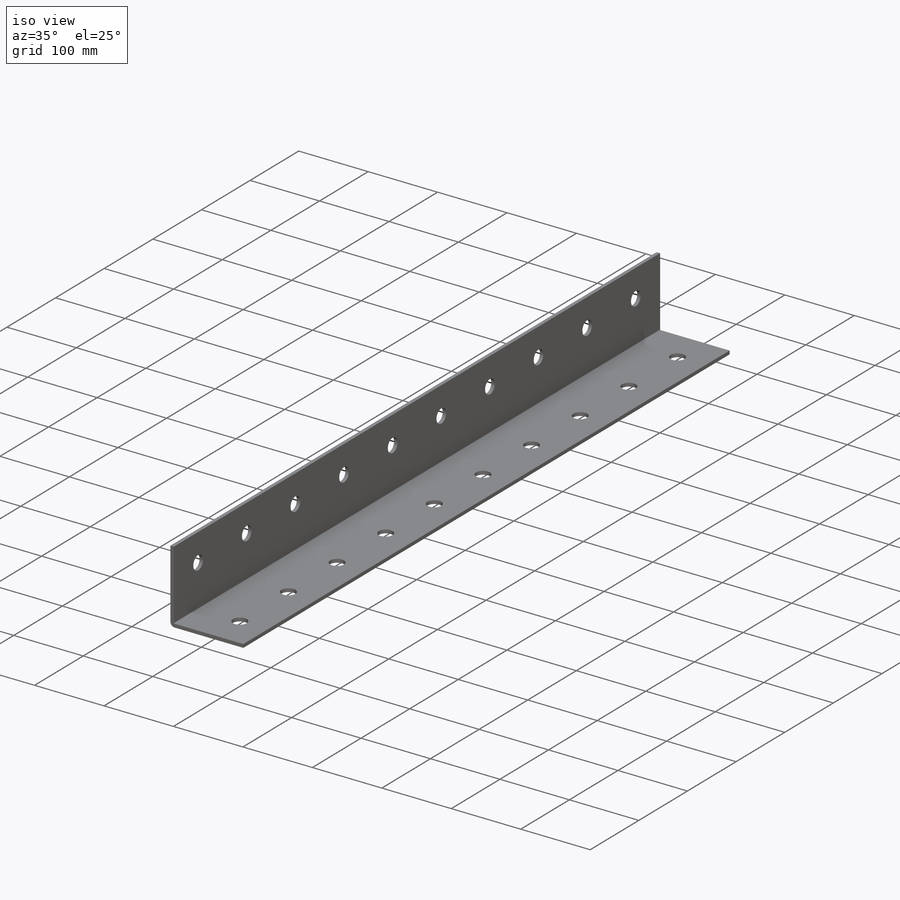
[diagram: iso view]
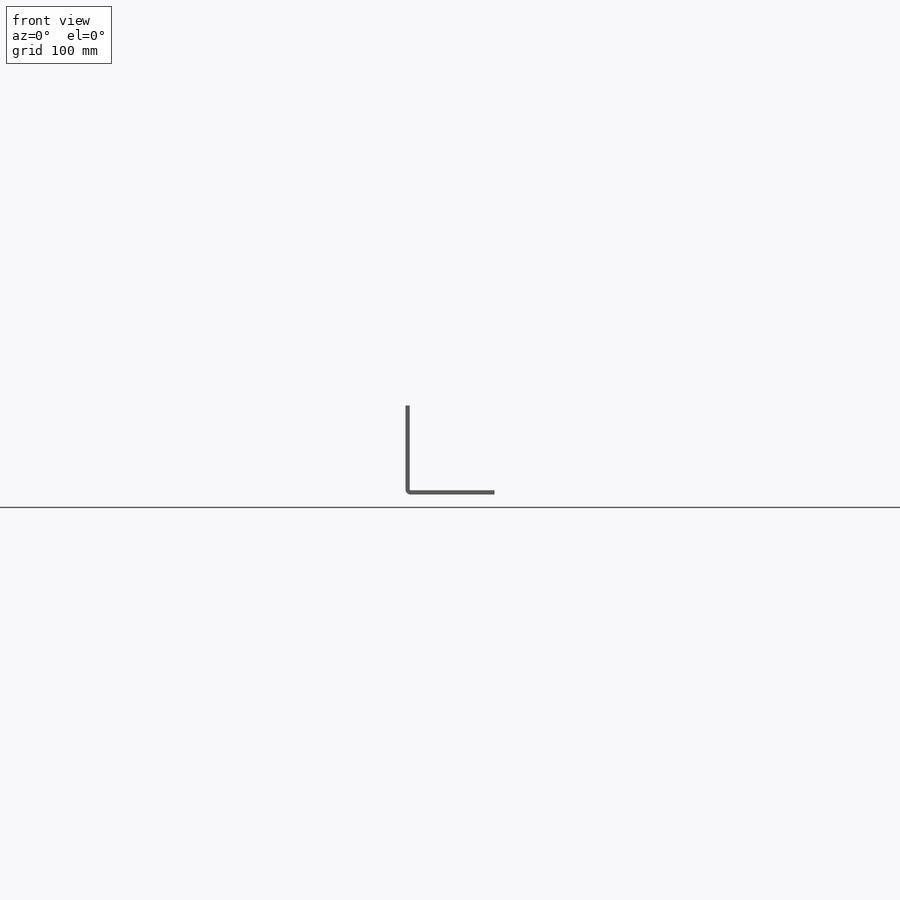
[diagram: front view]
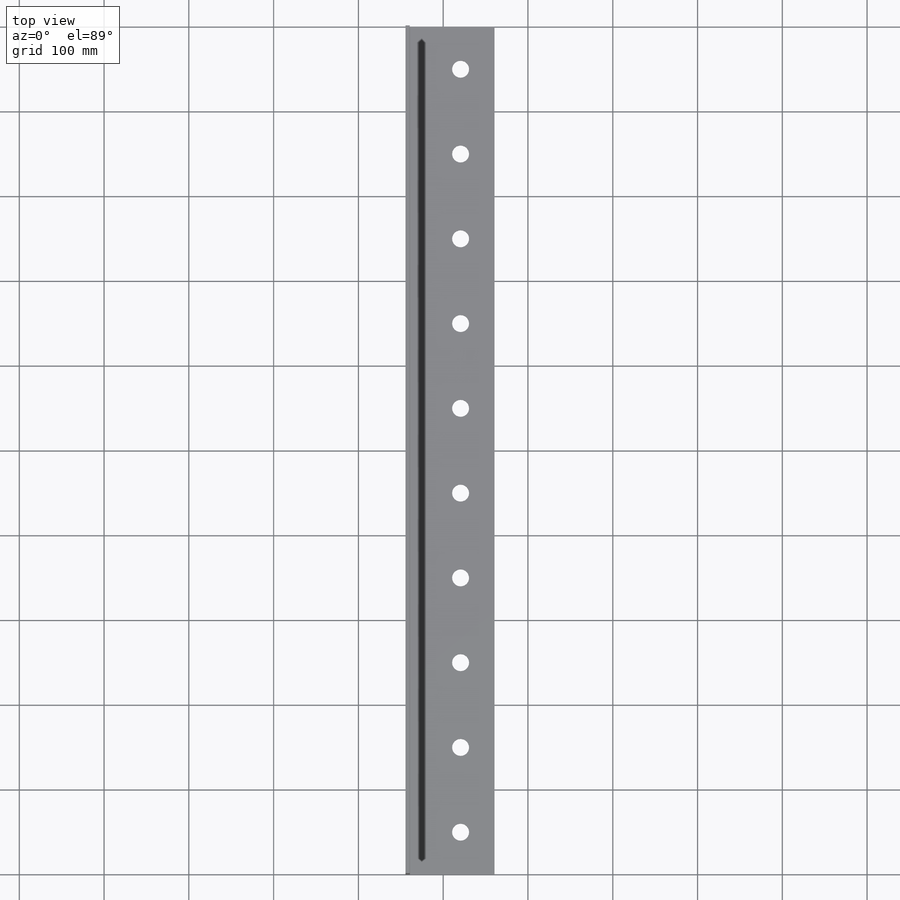
[diagram: top view]
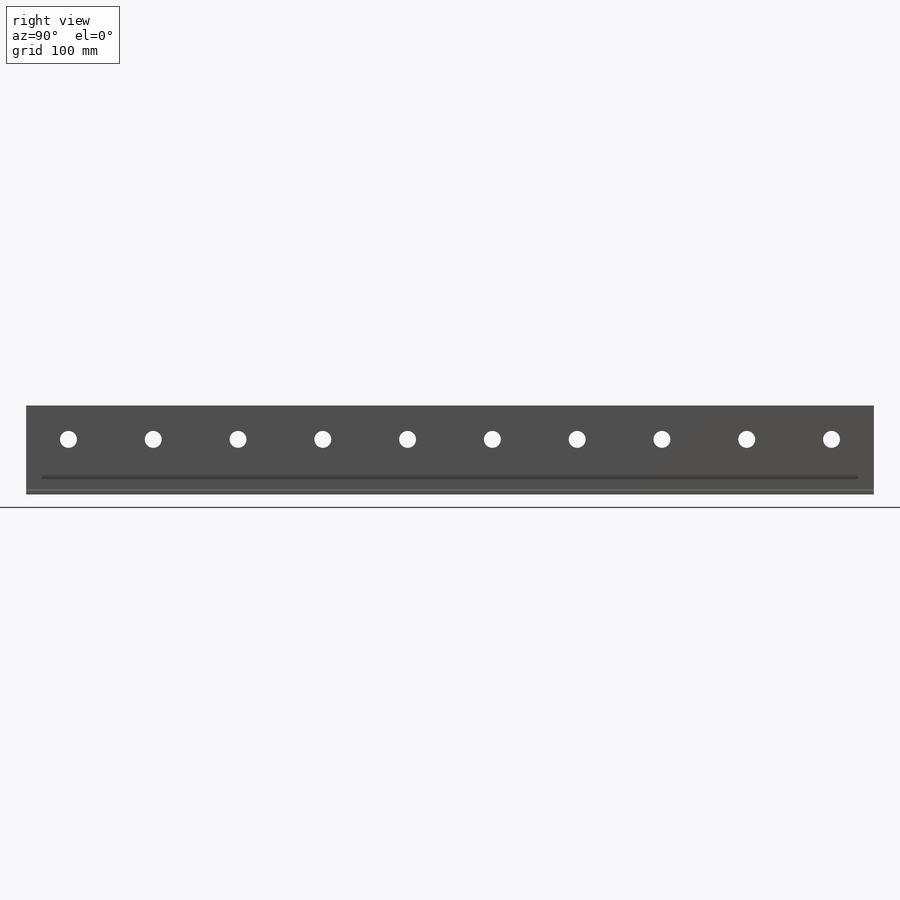
[diagram: right view]
SOLIDWORKS PART (.sldprt)
format: sldprt  version: not decoded by parser v0  size: 286,208 bytes
history: native  units: mm
features: sketch x15, sheet_metal_op x6, pattern_linear x5, plane x3, material x1, cut_extrude x1, extrude x1 + 5 further entries (+9 scaffold rows collapsed; 5 parser-record rows omitted)
feature tree (51):
  scaffold x9  (default folders/planes/origin — collapsed)
  material  "Material <nicht festgelegt>"
  plane  "Ebene vorne"
  plane  "Ebene oben"
  plane  "Ebene rechts"
  sketch  "Skizze1"  dims[c1.D1=100.0mm c1.D2=100.0mm c2.D1=1.0mm c2.D2=0.5 c2.D3=0.0mm c2.D6=500.0mm]
  sheet_metal_op  "Basis-Blech1"
  sketch  "Skizze6"  dims[D1=40.0mm D2=50.0mm]
  cut_extrude  "Schnitt-Linear austragen1"  [1 undecoded]
  pattern_linear  "Lineares Muster1"  Spacing1=100mm Spacing2=10mm  [1 undecoded]
  sketch  "Skizze11"  dims[c1.D1=~12.793124mm c1.D2=20.0mm c2.D1=40.0mm c2.D2=50.0mm c2.Schnitt-Linear austragen2=65536.0]
  extrude  "Lineares Muster2"  Depth=100mm
  sketch  "Biegung-Linien1"
  sketch  "Rahmen1"
  sheet_metal_op  "Blech(1)"
  "Abwicklung(1)"
  sketch  "Biegung-Linien2"
  sketch  "Rahmen2"
  parser-record x5  (decoder bookkeeping rows leaked as tree rows — omitted from the tree; the rows remain in map.json)
  pattern_linear  "Blech(2)"  Spacing1=1mm Spacing2=500mm  [1 undecoded]
  sheet_metal_op  "Abwicklung(1)"
  sketch  "Biegung-Linien3"
  sketch  "Rahmen3"
  "Abwickeln-<Basisbiegung1>2"
  pattern_linear  "Blech(3)"  Spacing1=1mm Spacing2=500mm  [1 undecoded]
  sheet_metal_op  "Abwicklung(1)"
  sketch  "Biegung-Linien4"
  sketch  "Rahmen4"
  "Abwickeln-<Basisbiegung1>3"
  pattern_linear  "Blech(4)"  Spacing1=1mm Spacing2=500mm  [1 undecoded]
  sheet_metal_op  "Abwicklung(1)"
  sketch  "Biegung-Linien5"
  sketch  "Rahmen5"
  "Abwickeln-<Basisbiegung1>4"
  pattern_linear  "Blech(5)"  Spacing1=1mm Spacing2=500mm  [1 undecoded]
  sheet_metal_op  "Abwicklung(1)"
  sketch  "Biegung-Linien6"
  sketch  "Rahmen6"
  "Abwickeln-<Basisbiegung1>5"
decode coverage: 9 of 28 modeling features carry decoded parameters; 5 rows unclassified (native names shown)
note: ~ marks probable driven/reference dimensions
note: 6 parameter values undecoded
note: suppression state not decoded; provenance and decode notes live in map.json
